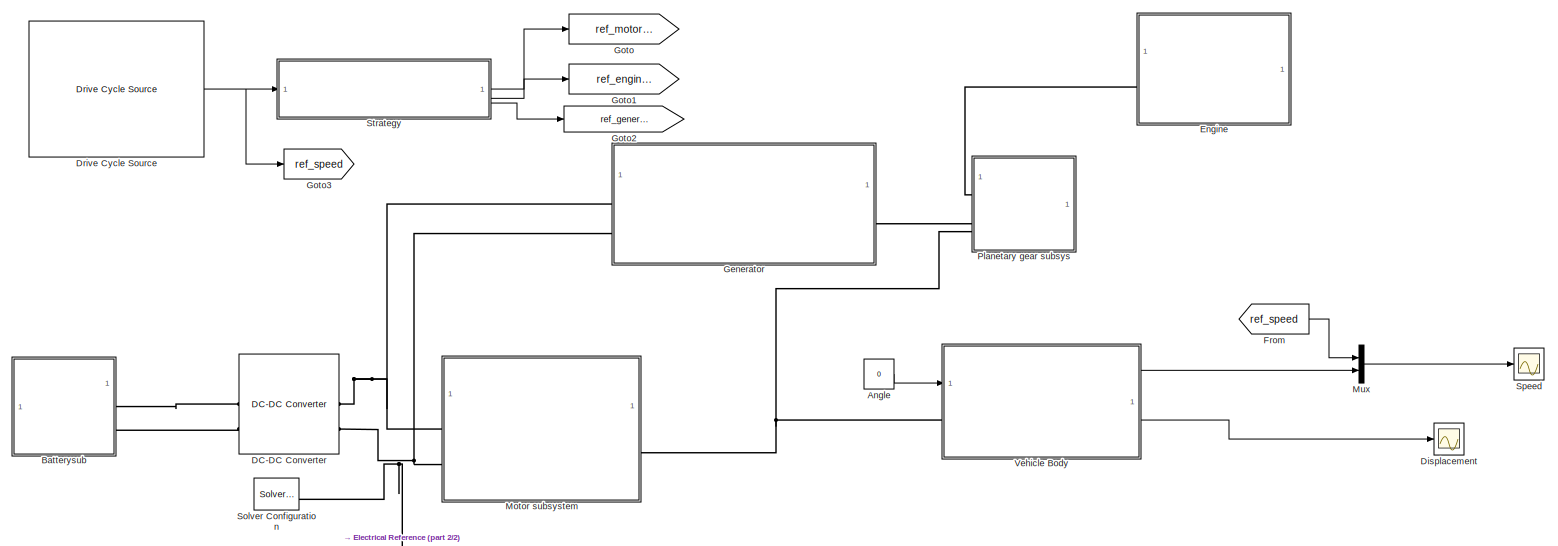
[diagram: root canvas - part 1/2, full width, middle band]
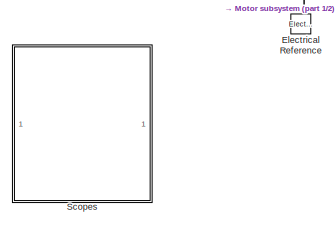
[diagram: root canvas - part 2/2, bottom left region]
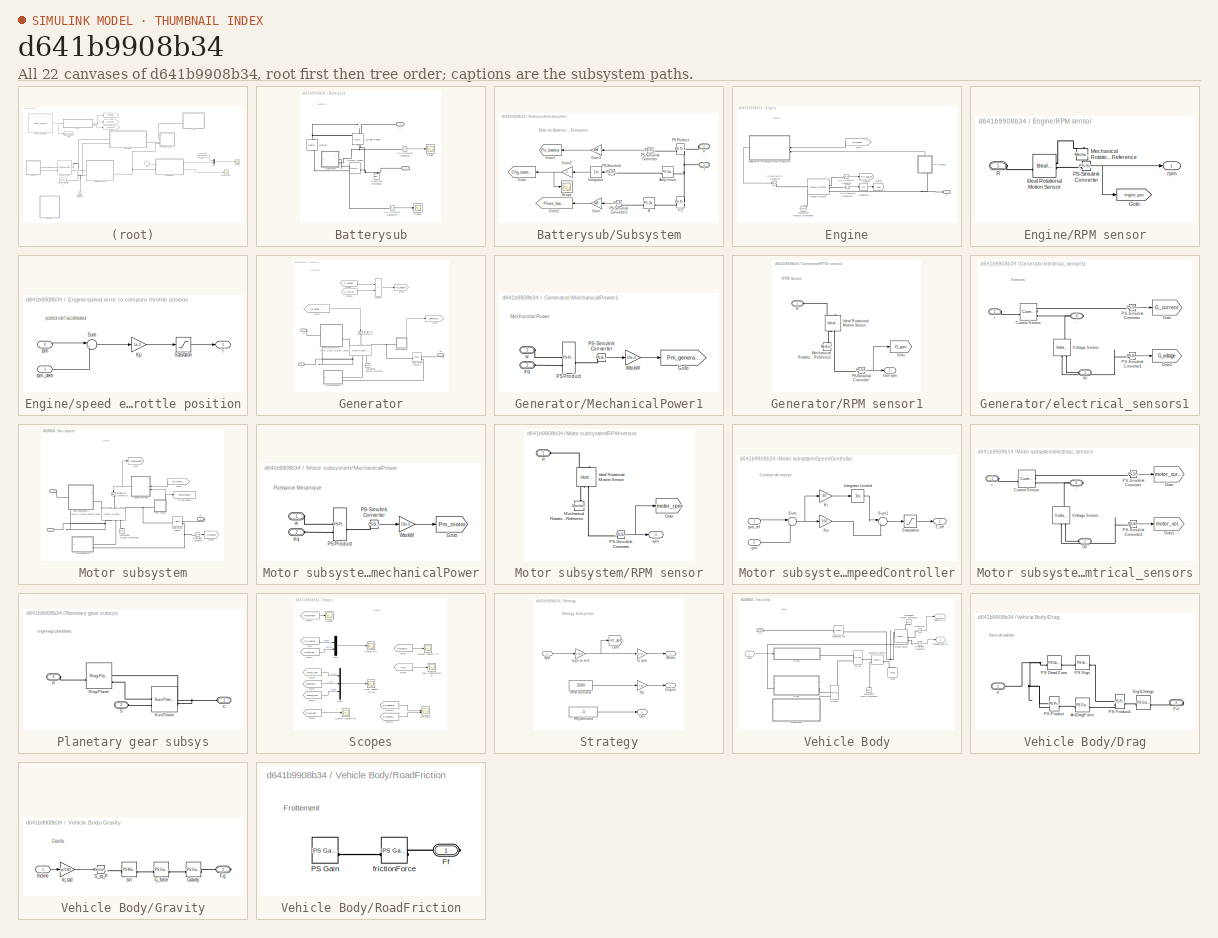
[diagram: thumbnail index - all 22 canvases of the model, root first then tree order]
MODEL slx_d641b9908b34
KIND model
CONFIG AbsTol = auto
CONFIG EnableMultiTasking = off
CONFIG FixedStep = auto
CONFIG MaxStep = auto
CONFIG MinStep = auto
CONFIG RelTol = 1e-3
CONFIG SampleTimeConstraint = Unconstrained
CONFIG SolverName = ode15s
CONFIG StartTime = 0.0
CONFIG StopTime = 2000
WORKSPACE source: mxarray member
WORKSPACE N_P0 = 3
BLOCK [Constant] Angle
  NameLocation = top
  Value = 0
BLOCK [SubSystem] Batterysub
BLOCK [PMIOPort] Batterysub/+
  Side = Left
BLOCK [PMIOPort] Batterysub/-
  Port = 2
  Side = Left
BLOCK [Reference] Batterysub/Battery  REF=batteryecm_lib/Battery
  LibrarySourceBlock = ee_lib/Sources/Battery
  NameLocation = right
  SourceBlock = batteryecm_lib/Battery
  SourceType = Battery
BLOCK [Reference] Batterysub/Current Sensor  REF=fl_lib/Electrical/Electrical Sensors/Current Sensor
  SourceBlock = fl_lib/Electrical/Electrical Sensors/Current Sensor
  SourceType = Current Sensor
BLOCK [Reference] Batterysub/Electrical Reference  REF=fl_lib/Electrical/Electrical Elements/Electrical Reference
  NameLocation = right
  SourceBlock = fl_lib/Electrical/Electrical Elements/Electrical Reference
  SourceType = Electrical Reference
BLOCK [Reference] Batterysub/PS-Simulink Converter  REF=nesl_utility/PS-Simulink
Converter
  SourceBlock = nesl_utility/PS-Simulink\nConverter
  SourceType = PS-Simulink\nConverter
BLOCK [Reference] Batterysub/PS-Simulink Converter1  REF=nesl_utility/PS-Simulink
Converter
  SourceBlock = nesl_utility/PS-Simulink\nConverter
  SourceType = PS-Simulink\nConverter
BLOCK [Scope] Batterysub/Scope
  Floating = off
  NumInputPorts = 1
  ScopeSpecificationString = Simulink.scopes.TimeScopeBlockCfg('CurrentConfiguration', extmgr.ConfigurationSet(extmgr.Configuration('Core','General UI',true),extmgr.Configuration('Core','Source UI',true),extmgr.Configuration('Sources','WiredSimulink',true,'DataLoggingVariableName','ScopeData3'),extmgr.Configuration('Visuals','Time Domain',true,'SerializedDisplays',{struct('MinYLimReal','194.36774','MaxYLimReal','196.28367','Y...<+1483ch>
BLOCK [Scope] Batterysub/Scope1
  Floating = off
  NumInputPorts = 1
  ScopeSpecificationString = Simulink.scopes.TimeScopeBlockCfg('CurrentConfiguration', extmgr.ConfigurationSet(extmgr.Configuration('Core','General UI',true),extmgr.Configuration('Core','Source UI',true),extmgr.Configuration('Sources','WiredSimulink',true,'DataLoggingVariableName','ScopeData4'),extmgr.Configuration('Visuals','Time Domain',true,'SerializedDisplays',{struct('MinYLimReal','-1.32587','MaxYLimReal','15.99545','YLa...<+1474ch>
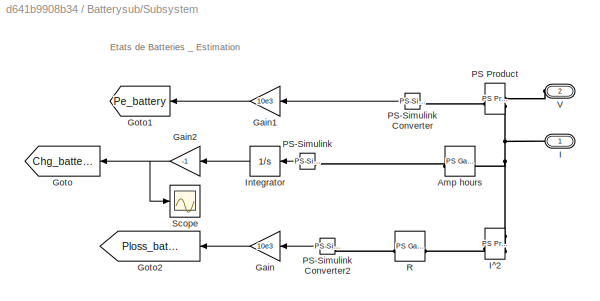
BLOCK [SubSystem] Batterysub/Subsystem
BLOCK [Reference] Batterysub/Subsystem/Amp hours  REF=fl_lib/Physical Signals/Functions/PS Gain
  SourceBlock = fl_lib/Physical Signals/Functions/PS Gain
  SourceType = PS Gain
BLOCK [Gain] Batterysub/Subsystem/Gain
  Gain = 10e3
BLOCK [Gain] Batterysub/Subsystem/Gain1
  Gain = 10e3
BLOCK [Gain] Batterysub/Subsystem/Gain2
  Gain = -1
BLOCK [Goto] Batterysub/Subsystem/Goto
  GotoTag = Chg_battery
  TagVisibility = global
BLOCK [Goto] Batterysub/Subsystem/Goto1
  GotoTag = Pe_battery
  TagVisibility = global
BLOCK [Goto] Batterysub/Subsystem/Goto2
  GotoTag = Ploss_battery
  TagVisibility = global
BLOCK [PMIOPort] Batterysub/Subsystem/I
  Side = Left
BLOCK [Reference] Batterysub/Subsystem/I^2  REF=fl_lib/Physical Signals/Functions/PS Product
  SourceBlock = fl_lib/Physical Signals/Functions/PS Product
  SourceType = PS Product
BLOCK [Integrator] Batterysub/Subsystem/Integrator
  InitialCondition = -150
  UpperSaturationLimit = 150
BLOCK [Reference] Batterysub/Subsystem/PS Product  REF=fl_lib/Physical Signals/Functions/PS Product
  SourceBlock = fl_lib/Physical Signals/Functions/PS Product
  SourceType = PS Product
BLOCK [Reference] Batterysub/Subsystem/PS-Simulink   REF=nesl_utility/PS-Simulink
Converter
  SourceBlock = nesl_utility/PS-Simulink\nConverter
  SourceType = PS-Simulink\nConverter
BLOCK [Reference] Batterysub/Subsystem/PS-Simulink Converter  REF=nesl_utility/PS-Simulink
Converter
  SourceBlock = nesl_utility/PS-Simulink\nConverter
  SourceType = PS-Simulink\nConverter
BLOCK [Reference] Batterysub/Subsystem/PS-Simulink Converter2  REF=nesl_utility/PS-Simulink
Converter
  SourceBlock = nesl_utility/PS-Simulink\nConverter
  SourceType = PS-Simulink\nConverter
BLOCK [Reference] Batterysub/Subsystem/R  REF=fl_lib/Physical Signals/Functions/PS Gain
  SourceBlock = fl_lib/Physical Signals/Functions/PS Gain
  SourceType = PS Gain
BLOCK [Scope] Batterysub/Subsystem/Scope
  Floating = off
  NumInputPorts = 1
  ScopeSpecificationString = Simulink.scopes.TimeScopeBlockCfg('CurrentConfiguration', extmgr.ConfigurationSet(extmgr.Configuration('Core','General UI',true),extmgr.Configuration('Core','Source UI',true),extmgr.Configuration('Sources','WiredSimulink',true,'DataLoggingVariableName','ScopeData5'),extmgr.Configuration('Visuals','Time Domain',true,'SerializedDisplays',{struct('MinYLimReal','138.45672','MaxYLimReal','151.28259','Y...<+1521ch>
BLOCK [PMIOPort] Batterysub/Subsystem/V
  Port = 2
  Side = Left
BLOCK [Reference] Batterysub/Voltage Sensor  REF=fl_lib/Electrical/Electrical Sensors/Voltage Sensor
  NameLocation = right
  SourceBlock = fl_lib/Electrical/Electrical Sensors/Voltage Sensor
  SourceType = Voltage Sensor
BLOCK [Reference] DC-DC Converter  REF=ee_lib/Semiconductors &
Converters/Converters/DC-DC Converter
  SourceBlock = ee_lib/Semiconductors &\nConverters/Converters/DC-DC Converter
  SourceType = DC-DC Converter
BLOCK [Scope] Displacement
  Floating = off
  NumInputPorts = 1
  ScopeSpecificationString = Simulink.scopes.TimeScopeBlockCfg('CurrentConfiguration', extmgr.ConfigurationSet(extmgr.Configuration('Core','General UI',true),extmgr.Configuration('Core','Source UI',true),extmgr.Configuration('Sources','WiredSimulink',true,'DataLoggingVariableName','ScopeData1'),extmgr.Configuration('Visuals','Time Domain',true,'SerializedDisplays',{struct('MinYLimReal','-9.29778','MaxYLimReal','83.67999','YLa...<+1493ch>
BLOCK [Reference] Drive Cycle Source  REF=autolibshared/Drive Cycle Source
  AttributesFormatString = %<cycleVar> (%<tfinal>)
  LibrarySourceBlock = autolibscenario/Drive Cycle Source
  SourceBlock = autolibshared/Drive Cycle Source
  SourceType = Drive Cycle Source
BLOCK [Reference] Electrical Reference  REF=fl_lib/Electrical/Electrical Elements/Electrical Reference
  NameLocation = right
  SourceBlock = fl_lib/Electrical/Electrical Elements/Electrical Reference
  SourceType = Electrical Reference
BLOCK [SubSystem] Engine
BLOCK [PMIOPort] Engine/F
  Side = Left
BLOCK [From] Engine/From
  GotoTag = ref_engine_speed
  TagVisibility = global
BLOCK [Reference] Engine/Generic Engine  REF=sdl_lib/Engines & Motors/Generic Engine
  SourceBlock = sdl_lib/Engines & Motors/Generic Engine
  SourceType = Generic Engine
BLOCK [Goto] Engine/Goto3
  GotoTag = Pm_engine
  TagVisibility = global
BLOCK [Goto] Engine/Goto4
  GotoTag = Fuel
  TagVisibility = global
BLOCK [Integrator] Engine/Integrator
BLOCK [Reference] Engine/Mechanical Rotational Reference  REF=fl_lib/Mechanical/Rotational Elements/Mechanical
Rotational Reference
  NameLocation = right
  SourceBlock = fl_lib/Mechanical/Rotational Elements/Mechanical\nRotational Reference
  SourceType = Mechanical\nRotational Reference
BLOCK [Reference] Engine/PS-Simulink Converter  REF=nesl_utility/PS-Simulink
Converter
  SourceBlock = nesl_utility/PS-Simulink\nConverter
  SourceType = PS-Simulink\nConverter
BLOCK [Reference] Engine/PS-Simulink Converter1  REF=nesl_utility/PS-Simulink
Converter
  SourceBlock = nesl_utility/PS-Simulink\nConverter
  SourceType = PS-Simulink\nConverter
BLOCK [SubSystem] Engine/RPM sensor
  NameLocation = right
BLOCK [Goto] Engine/RPM sensor/Goto
  GotoTag = engine_rpm
  TagVisibility = global
BLOCK [Reference] Engine/RPM sensor/Ideal Rotational Motion Sensor  REF=fl_lib/Mechanical/Mechanical Sensors/Ideal Rotational
Motion Sensor
  SourceBlock = fl_lib/Mechanical/Mechanical Sensors/Ideal Rotational\nMotion Sensor
  SourceType = Ideal Rotational\nMotion Sensor
BLOCK [Reference] Engine/RPM sensor/Mechanical Rotational Reference  REF=fl_lib/Mechanical/Rotational Elements/Mechanical
Rotational Reference
  NameLocation = right
  SourceBlock = fl_lib/Mechanical/Rotational Elements/Mechanical\nRotational Reference
  SourceType = Mechanical\nRotational Reference
BLOCK [Reference] Engine/RPM sensor/PS-Simulink Converter  REF=nesl_utility/PS-Simulink
Converter
  SourceBlock = nesl_utility/PS-Simulink\nConverter
  SourceType = PS-Simulink\nConverter
BLOCK [PMIOPort] Engine/RPM sensor/R
  Side = Left
BLOCK [Outport] Engine/RPM sensor/rpm
BLOCK [Reference] Engine/Simulink-PS Converter  REF=nesl_utility/Simulink-PS
Converter
  SourceBlock = nesl_utility/Simulink-PS\nConverter
  SourceType = Simulink-PS\nConverter
BLOCK [SubSystem] Engine/speed error to compute throttle position
BLOCK [Gain] Engine/speed error to compute throttle position/Kp
  Gain = 1e-3
BLOCK [Saturate] Engine/speed error to compute throttle position/Saturation
  LowerLimit = 0
  UpperLimit = 1
BLOCK [Sum] Engine/speed error to compute throttle position/Sum
  Inputs = |+-
BLOCK [Outport] Engine/speed error to compute throttle position/T
BLOCK [Inport] Engine/speed error to compute throttle position/rpm
  Port = 2
BLOCK [Inport] Engine/speed error to compute throttle position/rpm_dem
BLOCK [From] From
  GotoTag = ref_speed
  TagVisibility = global
BLOCK [SubSystem] Generator
BLOCK [PMIOPort] Generator/+1
  Side = Left
BLOCK [PMIOPort] Generator/-1
  Port = 2
  Side = Left
BLOCK [From] Generator/From
  GotoTag = G_voltage
  TagVisibility = global
BLOCK [From] Generator/From1
  GotoTag = ref_generator_torque
  TagVisibility = global
BLOCK [From] Generator/From6
  GotoTag = G_current
  TagVisibility = global
BLOCK [Goto] Generator/Goto
  GotoTag = Pe_generator
  TagVisibility = global
BLOCK [Goto] Generator/Goto2
  GotoTag = generator_rpm
  TagVisibility = global
BLOCK [Reference] Generator/Ideal Torque Sensor1  REF=fl_lib/Mechanical/Mechanical Sensors/Ideal Torque Sensor
  SourceBlock = fl_lib/Mechanical/Mechanical Sensors/Ideal Torque Sensor
  SourceType = Ideal Torque Sensor
BLOCK [Reference] Generator/Mechanical Rotational Reference1  REF=fl_lib/Mechanical/Rotational Elements/Mechanical
Rotational Reference
  NameLocation = right
  SourceBlock = fl_lib/Mechanical/Rotational Elements/Mechanical\nRotational Reference
  SourceType = Mechanical\nRotational Reference
BLOCK [SubSystem] Generator/MechanicalPower1
BLOCK [Goto] Generator/MechanicalPower1/Goto
  GotoTag = Pm_generator
  TagVisibility = global
BLOCK [Reference] Generator/MechanicalPower1/PS Product  REF=fl_lib/Physical Signals/Functions/PS Product
  SourceBlock = fl_lib/Physical Signals/Functions/PS Product
  SourceType = PS Product
BLOCK [Reference] Generator/MechanicalPower1/PS-Simulink Converter  REF=nesl_utility/PS-Simulink
Converter
  SourceBlock = nesl_utility/PS-Simulink\nConverter
  SourceType = PS-Simulink\nConverter
BLOCK [Gain] Generator/MechanicalPower1/WtokW
  Gain = 10e-3
BLOCK [PMIOPort] Generator/MechanicalPower1/trq
  Port = 2
  Side = Left
BLOCK [PMIOPort] Generator/MechanicalPower1/w
  NameLocation = top
  Side = Left
BLOCK [Reference] Generator/Motor & Drive (System Level)1  REF=ee_lib/Electromechanical/Motor & Drive
(System Level)
  NameLocation = right
  SourceBlock = ee_lib/Electromechanical/Motor & Drive\n(System Level)
  SourceType = Motor & Drive\n(System Level)
BLOCK [Product] Generator/Product
BLOCK [PMIOPort] Generator/R1
  Port = 3
  Side = Right
BLOCK [SubSystem] Generator/RPM sensor1
  PortSchema = {"entries":[{"content":{"sides":[{"content":{"connectorIds":["LConn1"]},"type":"ConnectorPlacement.EquallySpacedRectSide","uuid":"39d046d5-f421-4f0d-879d-c19748025329"},{"content":{"side":"RIGHT"},"type":"ConnectorPlacement.EquallySpacedRectSide","uuid":"b6149d9e-7ab3-4f68-a15b-9fef8f2169c7"},{"content":{"connectorIds":["Out1"],"side":"TOP"},"type":"ConnectorPlacement.EquallySpacedRectSide","uuid"...<+225ch>
BLOCK [Outport] Generator/RPM sensor1/Gen rpm
BLOCK [Goto] Generator/RPM sensor1/Goto
  GotoTag = G_rpm
  TagVisibility = global
BLOCK [Reference] Generator/RPM sensor1/Ideal Rotational Motion Sensor  REF=fl_lib/Mechanical/Mechanical Sensors/Ideal Rotational
Motion Sensor
  NameLocation = left
  SourceBlock = fl_lib/Mechanical/Mechanical Sensors/Ideal Rotational\nMotion Sensor
  SourceType = Ideal Rotational\nMotion Sensor
BLOCK [Reference] Generator/RPM sensor1/Mechanical Rotational Reference  REF=fl_lib/Mechanical/Rotational Elements/Mechanical
Rotational Reference
  NameLocation = right
  SourceBlock = fl_lib/Mechanical/Rotational Elements/Mechanical\nRotational Reference
  SourceType = Mechanical\nRotational Reference
BLOCK [Reference] Generator/RPM sensor1/PS-Simulink Converter  REF=nesl_utility/PS-Simulink
Converter
  SourceBlock = nesl_utility/PS-Simulink\nConverter
  SourceType = PS-Simulink\nConverter
BLOCK [PMIOPort] Generator/RPM sensor1/R
  Side = Left
BLOCK [Reference] Generator/Simulink-PS Converter2  REF=nesl_utility/Simulink-PS
Converter
  NameLocation = left
  SourceBlock = nesl_utility/Simulink-PS\nConverter
  SourceType = Simulink-PS\nConverter
BLOCK [SubSystem] Generator/electrical_sensors1
BLOCK [PMIOPort] Generator/electrical_sensors1/+
  Side = Left
BLOCK [PMIOPort] Generator/electrical_sensors1/-
  Port = 3
  Side = Right
BLOCK [PMIOPort] Generator/electrical_sensors1/0V
  Port = 2
  Side = Left
BLOCK [Reference] Generator/electrical_sensors1/Current Sensor  REF=fl_lib/Electrical/Electrical Sensors/Current Sensor
  SourceBlock = fl_lib/Electrical/Electrical Sensors/Current Sensor
  SourceType = Current Sensor
BLOCK [Goto] Generator/electrical_sensors1/Goto
  GotoTag = G_current
  TagVisibility = global
BLOCK [Goto] Generator/electrical_sensors1/Goto1
  GotoTag = G_voltage
  TagVisibility = global
BLOCK [Reference] Generator/electrical_sensors1/PS-Simulink Converter  REF=nesl_utility/PS-Simulink
Converter
  SourceBlock = nesl_utility/PS-Simulink\nConverter
  SourceType = PS-Simulink\nConverter
BLOCK [Reference] Generator/electrical_sensors1/PS-Simulink Converter1  REF=nesl_utility/PS-Simulink
Converter
  SourceBlock = nesl_utility/PS-Simulink\nConverter
  SourceType = PS-Simulink\nConverter
BLOCK [Reference] Generator/electrical_sensors1/Voltage Sensor  REF=fl_lib/Electrical/Electrical Sensors/Voltage Sensor
  NameLocation = right
  SourceBlock = fl_lib/Electrical/Electrical Sensors/Voltage Sensor
  SourceType = Voltage Sensor
BLOCK [Goto] Goto
  GotoTag = ref_motor_rpm
  TagVisibility = global
BLOCK [Goto] Goto1
  GotoTag = ref_engine_speed
  TagVisibility = global
BLOCK [Goto] Goto2
  GotoTag = ref_generator_torque
  TagVisibility = global
BLOCK [Goto] Goto3
  GotoTag = ref_speed
  TagVisibility = global
BLOCK [SubSystem] Motor subsystem
BLOCK [PMIOPort] Motor subsystem/+
  Side = Left
BLOCK [PMIOPort] Motor subsystem/-
  Port = 2
  Side = Left
BLOCK [From] Motor subsystem/From
  GotoTag = ref_motor_rpm
  TagVisibility = global
BLOCK [Goto] Motor subsystem/Goto
  GotoTag = trqDemand
  TagVisibility = global
BLOCK [Goto] Motor subsystem/Goto1
  GotoTag = trqMotor
  TagVisibility = global
BLOCK [Reference] Motor subsystem/Ideal Torque Sensor  REF=fl_lib/Mechanical/Mechanical Sensors/Ideal Torque Sensor
  SourceBlock = fl_lib/Mechanical/Mechanical Sensors/Ideal Torque Sensor
  SourceType = Ideal Torque Sensor
BLOCK [Reference] Motor subsystem/Mechanical Rotational Reference  REF=fl_lib/Mechanical/Rotational Elements/Mechanical
Rotational Reference
  NameLocation = right
  SourceBlock = fl_lib/Mechanical/Rotational Elements/Mechanical\nRotational Reference
  SourceType = Mechanical\nRotational Reference
BLOCK [SubSystem] Motor subsystem/MechanicalPower
BLOCK [Goto] Motor subsystem/MechanicalPower/Goto
  GotoTag = Pm_motor
  TagVisibility = global
BLOCK [Reference] Motor subsystem/MechanicalPower/PS Product  REF=fl_lib/Physical Signals/Functions/PS Product
  SourceBlock = fl_lib/Physical Signals/Functions/PS Product
  SourceType = PS Product
BLOCK [Reference] Motor subsystem/MechanicalPower/PS-Simulink Converter  REF=nesl_utility/PS-Simulink
Converter
  SourceBlock = nesl_utility/PS-Simulink\nConverter
  SourceType = PS-Simulink\nConverter
BLOCK [Gain] Motor subsystem/MechanicalPower/WtokW
  Gain = 10e-3
BLOCK [PMIOPort] Motor subsystem/MechanicalPower/trq
  Port = 2
  Side = Left
BLOCK [PMIOPort] Motor subsystem/MechanicalPower/w
  NameLocation = top
  Side = Left
BLOCK [Reference] Motor subsystem/Motor & Drive (System Level)  REF=ee_lib/Electromechanical/Motor & Drive
(System Level)
  NameLocation = right
  SourceBlock = ee_lib/Electromechanical/Motor & Drive\n(System Level)
  SourceType = Motor & Drive\n(System Level)
BLOCK [Reference] Motor subsystem/PS-Simulink Converter  REF=nesl_utility/PS-Simulink
Converter
  SourceBlock = nesl_utility/PS-Simulink\nConverter
  SourceType = PS-Simulink\nConverter
BLOCK [PMIOPort] Motor subsystem/R
  Port = 3
  Side = Right
BLOCK [SubSystem] Motor subsystem/RPM sensor
  PortSchema = {"entries":[{"content":{"sides":[{"content":{"connectorIds":["LConn1"]},"type":"ConnectorPlacement.EquallySpacedRectSide","uuid":"39d046d5-f421-4f0d-879d-c19748025329"},{"content":{"side":"RIGHT"},"type":"ConnectorPlacement.EquallySpacedRectSide","uuid":"b6149d9e-7ab3-4f68-a15b-9fef8f2169c7"},{"content":{"connectorIds":["Out1"],"side":"TOP"},"type":"ConnectorPlacement.EquallySpacedRectSide","uuid"...<+225ch>
BLOCK [Goto] Motor subsystem/RPM sensor/Goto
  GotoTag = motor_rpm
  TagVisibility = global
BLOCK [Reference] Motor subsystem/RPM sensor/Ideal Rotational Motion Sensor  REF=fl_lib/Mechanical/Mechanical Sensors/Ideal Rotational
Motion Sensor
  NameLocation = left
  SourceBlock = fl_lib/Mechanical/Mechanical Sensors/Ideal Rotational\nMotion Sensor
  SourceType = Ideal Rotational\nMotion Sensor
BLOCK [Reference] Motor subsystem/RPM sensor/Mechanical Rotational Reference  REF=fl_lib/Mechanical/Rotational Elements/Mechanical
Rotational Reference
  NameLocation = right
  SourceBlock = fl_lib/Mechanical/Rotational Elements/Mechanical\nRotational Reference
  SourceType = Mechanical\nRotational Reference
BLOCK [Reference] Motor subsystem/RPM sensor/PS-Simulink Converter  REF=nesl_utility/PS-Simulink
Converter
  SourceBlock = nesl_utility/PS-Simulink\nConverter
  SourceType = PS-Simulink\nConverter
BLOCK [PMIOPort] Motor subsystem/RPM sensor/R
  Side = Left
BLOCK [Outport] Motor subsystem/RPM sensor/rpm
BLOCK [Reference] Motor subsystem/Simulink-PS Converter1  REF=nesl_utility/Simulink-PS
Converter
  NameLocation = left
  SourceBlock = nesl_utility/Simulink-PS\nConverter
  SourceType = Simulink-PS\nConverter
BLOCK [SubSystem] Motor subsystem/SpeedController
BLOCK [Integrator] Motor subsystem/SpeedController/Integrator Limited
  LimitOutput = on
  LowerSaturationLimit = -40
  UpperSaturationLimit = 40
BLOCK [Gain] Motor subsystem/SpeedController/Ki
  Gain = 60
BLOCK [Gain] Motor subsystem/SpeedController/Kp
  Gain = 200
BLOCK [Saturate] Motor subsystem/SpeedController/Saturation
  LowerLimit = -40
  UpperLimit = 40
BLOCK [Sum] Motor subsystem/SpeedController/Sum
  Inputs = |+-
  NameLocation = top
BLOCK [Sum] Motor subsystem/SpeedController/Sum1
  Inputs = |++
BLOCK [Outport] Motor subsystem/SpeedController/T_ref
BLOCK [Inport] Motor subsystem/SpeedController/rpm
  Port = 2
BLOCK [Inport] Motor subsystem/SpeedController/rpm_ref
BLOCK [ToWorkspace] Motor subsystem/To Workspace
  FixptAsFi = on
  MaxDataPoints = inf
  SampleTime = -1
  Save2DSignal = 2-D array (concatenate along first dimension)
  VariableName = rpm0
BLOCK [SubSystem] Motor subsystem/electrical_sensors
BLOCK [PMIOPort] Motor subsystem/electrical_sensors/+
  Side = Left
BLOCK [PMIOPort] Motor subsystem/electrical_sensors/-
  Port = 3
  Side = Right
BLOCK [PMIOPort] Motor subsystem/electrical_sensors/0V
  Port = 2
  Side = Left
BLOCK [Reference] Motor subsystem/electrical_sensors/Current Sensor  REF=fl_lib/Electrical/Electrical Sensors/Current Sensor
  SourceBlock = fl_lib/Electrical/Electrical Sensors/Current Sensor
  SourceType = Current Sensor
BLOCK [Goto] Motor subsystem/electrical_sensors/Goto
  GotoTag = motor_current
  TagVisibility = global
BLOCK [Goto] Motor subsystem/electrical_sensors/Goto1
  GotoTag = motor_voltage
  TagVisibility = global
BLOCK [Reference] Motor subsystem/electrical_sensors/PS-Simulink Converter  REF=nesl_utility/PS-Simulink
Converter
  SourceBlock = nesl_utility/PS-Simulink\nConverter
  SourceType = PS-Simulink\nConverter
BLOCK [Reference] Motor subsystem/electrical_sensors/PS-Simulink Converter1  REF=nesl_utility/PS-Simulink
Converter
  SourceBlock = nesl_utility/PS-Simulink\nConverter
  SourceType = PS-Simulink\nConverter
BLOCK [Reference] Motor subsystem/electrical_sensors/Voltage Sensor  REF=fl_lib/Electrical/Electrical Sensors/Voltage Sensor
  NameLocation = right
  SourceBlock = fl_lib/Electrical/Electrical Sensors/Voltage Sensor
  SourceType = Voltage Sensor
BLOCK [Mux] Mux
  DisplayOption = bar
  Inputs = 2
BLOCK [SubSystem] Planetary gear subsys
BLOCK [PMIOPort] Planetary gear subsys/C
  Side = Left
BLOCK [PMIOPort] Planetary gear subsys/R
  Port = 3
  Side = Left
BLOCK [Reference] Planetary gear subsys/Ring-Planet  REF=sdl_lib/Gears/Planetary
Subcomponents/Ring-Planet
  SourceBlock = sdl_lib/Gears/Planetary\nSubcomponents/Ring-Planet
  SourceType = Ring-Planet
BLOCK [PMIOPort] Planetary gear subsys/S
  Port = 2
  Side = Left
BLOCK [Reference] Planetary gear subsys/Sun-Planet  REF=sdl_lib/Gears/Planetary
Subcomponents/Sun-Planet
  SourceBlock = sdl_lib/Gears/Planetary\nSubcomponents/Sun-Planet
  SourceType = Sun-Planet
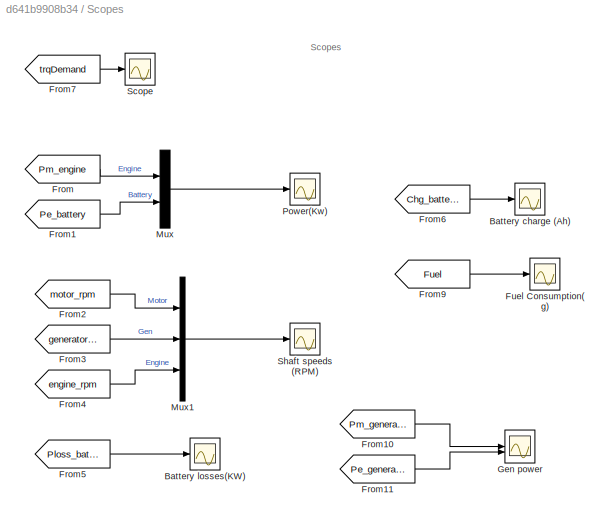
BLOCK [SubSystem] Scopes
BLOCK [Scope] Scopes/Battery charge (Ah)
  Floating = off
  NumInputPorts = 1
  ScopeSpecificationString = Simulink.scopes.TimeScopeBlockCfg('CurrentConfiguration', extmgr.ConfigurationSet(extmgr.Configuration('Core','General UI',true),extmgr.Configuration('Core','Source UI',true),extmgr.Configuration('Sources','WiredSimulink',true,'DataLoggingVariableName','ScopeData6'),extmgr.Configuration('Visuals','Time Domain',true,'SerializedDisplays',{struct('MinYLimReal','138.45672','MaxYLimReal','151.28259','Y...<+1492ch>
BLOCK [Scope] Scopes/Battery losses(KW)
  Floating = off
  NumInputPorts = 1
  ScopeSpecificationString = Simulink.scopes.TimeScopeBlockCfg('CurrentConfiguration', extmgr.ConfigurationSet(extmgr.Configuration('Core','General UI',true),extmgr.Configuration('Core','Source UI',true),extmgr.Configuration('Sources','WiredSimulink',true,'DataLoggingVariableName','ScopeData3'),extmgr.Configuration('Visuals','Time Domain',true,'SerializedDisplays',{struct('MinYLimReal','-28704984.73738','MaxYLimReal','2583448...<+1510ch>
BLOCK [From] Scopes/From
  GotoTag = Pm_engine
  TagVisibility = global
BLOCK [From] Scopes/From1
  GotoTag = Pe_battery
  TagVisibility = global
BLOCK [From] Scopes/From10
  GotoTag = Pm_generator
  TagVisibility = global
BLOCK [From] Scopes/From11
  GotoTag = Pe_generator
  TagVisibility = global
BLOCK [From] Scopes/From2
  GotoTag = motor_rpm
  TagVisibility = global
BLOCK [From] Scopes/From3
  GotoTag = generator_rpm
  TagVisibility = global
BLOCK [From] Scopes/From4
  GotoTag = engine_rpm
  TagVisibility = global
BLOCK [From] Scopes/From5
  GotoTag = Ploss_battery
  TagVisibility = global
BLOCK [From] Scopes/From6
  GotoTag = Chg_battery
  TagVisibility = global
BLOCK [From] Scopes/From7
  GotoTag = trqDemand
  TagVisibility = global
BLOCK [From] Scopes/From9
  GotoTag = Fuel
  TagVisibility = global
BLOCK [Scope] Scopes/Fuel Consumption(g)
  Floating = off
  NumInputPorts = 1
  ScopeSpecificationString = Simulink.scopes.TimeScopeBlockCfg('CurrentConfiguration', extmgr.ConfigurationSet(extmgr.Configuration('Core','General UI',true),extmgr.Configuration('Core','Source UI',true),extmgr.Configuration('Sources','WiredSimulink',true,'DataLoggingVariableName','ScopeData9'),extmgr.Configuration('Visuals','Time Domain',true,'SerializedDisplays',{struct('MinYLimReal','-0.000000002','MaxYLimReal','0.00000001...<+1544ch>
BLOCK [Scope] Scopes/Gen power
  Floating = off
  NumInputPorts = 2
  ScopeSpecificationString = Simulink.scopes.TimeScopeBlockCfg('CurrentConfiguration', extmgr.ConfigurationSet(extmgr.Configuration('Core','General UI',true),extmgr.Configuration('Core','Source UI',true),extmgr.Configuration('Sources','WiredSimulink',true,'DataLoggingVariableName','ScopeData10'),extmgr.Configuration('Visuals','Time Domain',true,'SerializedDisplays',{struct('MinYLimReal','-312.61371','MaxYLimReal','2812.8184',...<+1478ch>
BLOCK [Mux] Scopes/Mux
  DisplayOption = bar
  Inputs = 2
BLOCK [Mux] Scopes/Mux1
  DisplayOption = bar
  Inputs = 3
BLOCK [Scope] Scopes/Power(Kw)
  Floating = off
  NumInputPorts = 1
  ScopeSpecificationString = Simulink.scopes.TimeScopeBlockCfg('CurrentConfiguration', extmgr.ConfigurationSet(extmgr.Configuration('Core','General UI',true),extmgr.Configuration('Core','Source UI',true),extmgr.Configuration('Sources','WiredSimulink',true,'DataLoggingVariableName','ScopeData1'),extmgr.Configuration('Visuals','Time Domain',true,'SerializedDisplays',{struct('MinYLimReal','-32284928.55779','MaxYLimReal','3634976...<+1683ch>
BLOCK [Scope] Scopes/Scope
  Floating = off
  NumInputPorts = 1
  ScopeSpecificationString = Simulink.scopes.TimeScopeBlockCfg('CurrentConfiguration', extmgr.ConfigurationSet(extmgr.Configuration('Core','General UI',true),extmgr.Configuration('Core','Source UI',true),extmgr.Configuration('Sources','WiredSimulink',true,'DataLoggingVariableName','ScopeData7'),extmgr.Configuration('Visuals','Time Domain',true,'SerializedDisplays',{struct('MinYLimReal','-50.00000','MaxYLimReal','50.00000','YL...<+1498ch>
BLOCK [Scope] Scopes/Shaft speeds (RPM)
  Floating = off
  NumInputPorts = 1
  ScopeSpecificationString = Simulink.scopes.TimeScopeBlockCfg('CurrentConfiguration', extmgr.ConfigurationSet(extmgr.Configuration('Core','General UI',true),extmgr.Configuration('Core','Source UI',true),extmgr.Configuration('Sources','WiredSimulink',true,'DataLoggingVariableName','ScopeData2'),extmgr.Configuration('Visuals','Time Domain',true,'SerializedDisplays',{struct('MinYLimReal','-989.68104','MaxYLimReal','186.63341','...<+1601ch>
BLOCK [Reference] Solver Configuration  REF=nesl_utility/Solver
Configuration
  SourceBlock = nesl_utility/Solver\nConfiguration
  SourceType = Solver\nConfiguration
BLOCK [Scope] Speed
  Floating = off
  NumInputPorts = 1
  ScopeSpecificationString = Simulink.scopes.TimeScopeBlockCfg('CurrentConfiguration', extmgr.ConfigurationSet(extmgr.Configuration('Core','General UI',true),extmgr.Configuration('Core','Source UI',true),extmgr.Configuration('Sources','WiredSimulink',true,'DataLoggingVariableName','ScopeData2'),extmgr.Configuration('Visuals','Time Domain',true,'SerializedDisplays',{struct('MinYLimReal','-3.22187','MaxYLimReal','28.52151','YLa...<+1538ch>
BLOCK [SubSystem] Strategy
BLOCK [Outport] Strategy/Engine
  Port = 2
BLOCK [Outport] Strategy/Gen
  Port = 3
BLOCK [Goto] Strategy/Goto
  GotoTag = ref_spd
  TagVisibility = global
BLOCK [Gain] Strategy/Kp
  Gain = 1.08
BLOCK [Outport] Strategy/Motor
BLOCK [Constant] Strategy/RPM demand
  Value = 2000
BLOCK [Inport] Strategy/Spd
BLOCK [Constant] Strategy/TRQ demand
  Value = -3
BLOCK [Gain] Strategy/mph to m//s
  Gain = 0.44074
BLOCK [Gain] Strategy/to rpm
  Gain = 60/2*pi*0.3
BLOCK [SubSystem] Vehicle Body
BLOCK [Reference] Vehicle Body/Converter1  REF=nesl_utility/PS-Simulink
Converter
  SourceBlock = nesl_utility/PS-Simulink\nConverter
  SourceType = PS-Simulink\nConverter
BLOCK [Outport] Vehicle Body/Displacement(m)
  Port = 2
BLOCK [SubSystem] Vehicle Body/Drag
BLOCK [Reference] Vehicle Body/Drag/AirDragForce  REF=fl_lib/Physical Signals/Functions/PS Gain
  SourceBlock = fl_lib/Physical Signals/Functions/PS Gain
  SourceType = PS Gain
BLOCK [PMIOPort] Vehicle Body/Drag/Fd
  Port = 2
  Side = Right
BLOCK [Reference] Vehicle Body/Drag/PS Dead Zone  REF=fl_lib/Physical Signals/Nonlinear Operators/PS Dead Zone
  SourceBlock = fl_lib/Physical Signals/Nonlinear Operators/PS Dead Zone
  SourceType = PS Dead Zone
BLOCK [Reference] Vehicle Body/Drag/PS Product  REF=fl_lib/Physical Signals/Functions/PS Product
  SourceBlock = fl_lib/Physical Signals/Functions/PS Product
  SourceType = PS Product
BLOCK [Reference] Vehicle Body/Drag/PS Product1  REF=fl_lib/Physical Signals/Functions/PS Product
  SourceBlock = fl_lib/Physical Signals/Functions/PS Product
  SourceType = PS Product
BLOCK [Reference] Vehicle Body/Drag/PS Sign  REF=fl_lib/Physical Signals/Nonlinear Operators/PS Sign
  SourceBlock = fl_lib/Physical Signals/Nonlinear Operators/PS Sign
  SourceType = PS Sign
BLOCK [Reference] Vehicle Body/Drag/SignChange  REF=fl_lib/Physical Signals/Functions/PS Gain
  SourceBlock = fl_lib/Physical Signals/Functions/PS Gain
  SourceType = PS Gain
BLOCK [PMIOPort] Vehicle Body/Drag/V
  Side = Left
BLOCK [SubSystem] Vehicle Body/Gravity
BLOCK [PMIOPort] Vehicle Body/Gravity/Fg
  Side = Right
BLOCK [Reference] Vehicle Body/Gravity/G_force  REF=fl_lib/Physical Signals/Functions/PS Gain
  SourceBlock = fl_lib/Physical Signals/Functions/PS Gain
  SourceType = PS Gain
BLOCK [Reference] Vehicle Body/Gravity/Gravity  REF=fl_lib/Physical Signals/Functions/PS Gain
  SourceBlock = fl_lib/Physical Signals/Functions/PS Gain
  SourceType = PS Gain
BLOCK [Inport] Vehicle Body/Gravity/Incline
BLOCK [Reference] Vehicle Body/Gravity/S_to_P  REF=nesl_utility/Simulink-PS
Converter
  SourceBlock = nesl_utility/Simulink-PS\nConverter
  SourceType = Simulink-PS\nConverter
BLOCK [Reference] Vehicle Body/Gravity/sin  REF=fl_lib/Physical Signals/Functions/PS Math Function
  SourceBlock = fl_lib/Physical Signals/Functions/PS Math Function
  SourceType = PS Math Function
BLOCK [Gain] Vehicle Body/Gravity/to_rad
  Gain = pi/180
BLOCK [Reference] Vehicle Body/Ideal Force Source  REF=fl_lib/Mechanical/Mechanical Sources/Ideal Force Source
  SourceBlock = fl_lib/Mechanical/Mechanical Sources/Ideal Force Source
  SourceType = Ideal Force Source
BLOCK [Inport] Vehicle Body/Incline
BLOCK [Reference] Vehicle Body/Mass  REF=fl_lib/Mechanical/Translational
Elements/Mass
  NameLocation = right
  SourceBlock = fl_lib/Mechanical/Translational\nElements/Mass
  SourceType = Mass
BLOCK [Reference] Vehicle Body/Mechanical Translational Reference  REF=fl_lib/Mechanical/Translational
Elements/Mechanical
Translational
Reference
  NameLocation = right
  SourceBlock = fl_lib/Mechanical/Translational\nElements/Mechanical\nTranslational\nReference
  SourceType = Mechanical\nTranslational\nReference
BLOCK [Reference] Vehicle Body/Mechanical Translational Reference1  REF=fl_lib/Mechanical/Translational
Elements/Mechanical
Translational
Reference
  NameLocation = left
  SourceBlock = fl_lib/Mechanical/Translational\nElements/Mechanical\nTranslational\nReference
  SourceType = Mechanical\nTranslational\nReference
BLOCK [Reference] Vehicle Body/Motion Sensor  REF=fl_lib/Mechanical/Mechanical Sensors/Ideal Translational
Motion Sensor
  SourceBlock = fl_lib/Mechanical/Mechanical Sensors/Ideal Translational\nMotion Sensor
  SourceType = Ideal Translational\nMotion Sensor
BLOCK [Reference] Vehicle Body/PS Add  REF=fl_lib/Physical Signals/Functions/PS Add
  SourceBlock = fl_lib/Physical Signals/Functions/PS Add
  SourceType = PS Add
BLOCK [Reference] Vehicle Body/PS Add1  REF=fl_lib/Physical Signals/Functions/PS Add
  SourceBlock = fl_lib/Physical Signals/Functions/PS Add
  SourceType = PS Add
BLOCK [Reference] Vehicle Body/PS-Simulink Converter  REF=nesl_utility/PS-Simulink
Converter
  SourceBlock = nesl_utility/PS-Simulink\nConverter
  SourceType = PS-Simulink\nConverter
BLOCK [PMIOPort] Vehicle Body/R
  Side = Left
BLOCK [SubSystem] Vehicle Body/RoadFriction
BLOCK [PMIOPort] Vehicle Body/RoadFriction/Ff
  Side = Right
BLOCK [Reference] Vehicle Body/RoadFriction/PS Gain  REF=fl_lib/Physical Signals/Functions/PS Gain
  SourceBlock = fl_lib/Physical Signals/Functions/PS Gain
  SourceType = PS Gain
BLOCK [Reference] Vehicle Body/RoadFriction/frictionForce  REF=fl_lib/Physical Signals/Functions/PS Gain
  SourceBlock = fl_lib/Physical Signals/Functions/PS Gain
  SourceType = PS Gain
BLOCK [Outport] Vehicle Body/Velocity(m//s)
BLOCK [Reference] Vehicle Body/Wheel and Axle  REF=fl_lib/Mechanical/Mechanisms/Wheel and Axle
  SourceBlock = fl_lib/Mechanical/Mechanisms/Wheel and Axle
  SourceType = Wheel and Axle
ANNOTATION Batterysub: Batterie
ANNOTATION Batterysub/Subsystem: Etats de Batteries _ Estimation
ANNOTATION Engine: Engine
ANNOTATION Engine/speed error to compute throttle position: position de l'accélérateur
ANNOTATION Generator: Generator
ANNOTATION Generator/MechanicalPower1: Mechanical Power
ANNOTATION Generator/RPM sensor1: RPM Sensor
ANNOTATION Generator/electrical_sensors1: Sensors
ANNOTATION Motor subsystem: Motor
ANNOTATION Motor subsystem/MechanicalPower: Puissance Mecanique
ANNOTATION Motor subsystem/SpeedController: Controle de vitesse
ANNOTATION Planetary gear subsys: e ngrenage planétaire
ANNOTATION Scopes: Scopes
ANNOTATION Strategy: Strategy Subsystem
ANNOTATION Vehicle Body: Vehicule
ANNOTATION Vehicle Body/Drag: force de traînée
ANNOTATION Vehicle Body/Gravity: Gravite
ANNOTATION Vehicle Body/RoadFriction: Frottement
LINE Angle:1 -> Vehicle Body:1
LINE Batterysub/PS-Simulink Converter1:1 -> Batterysub/Scope1:1
LINE Batterysub/PS-Simulink Converter:1 -> Batterysub/Scope:1
LINE Batterysub/Subsystem/Gain1:1 -> Batterysub/Subsystem/Goto1:1
NET Batterysub/Subsystem/Gain2:1 -> Batterysub/Subsystem/Goto:1, Batterysub/Subsystem/Scope:1
LINE Batterysub/Subsystem/Gain:1 -> Batterysub/Subsystem/Goto2:1
LINE Batterysub/Subsystem/Integrator:1 -> Batterysub/Subsystem/Gain2:1
LINE Batterysub/Subsystem/PS-Simulink :1 -> Batterysub/Subsystem/Integrator:1
LINE Batterysub/Subsystem/PS-Simulink Converter2:1 -> Batterysub/Subsystem/Gain:1
LINE Batterysub/Subsystem/PS-Simulink Converter:1 -> Batterysub/Subsystem/Gain1:1
NET Drive Cycle Source:1 -> Goto3:1, Strategy:1
LINE Engine/From:1 -> Engine/speed error to compute throttle position:1
LINE Engine/Integrator:1 -> Engine/Goto4:1
LINE Engine/PS-Simulink Converter1:1 -> Engine/Integrator:1
LINE Engine/PS-Simulink Converter:1 -> Engine/Goto3:1
NET Engine/RPM sensor/PS-Simulink Converter:1 -> Engine/RPM sensor/Goto:1, Engine/RPM sensor/rpm:1
LINE Engine/RPM sensor:1 -> Engine/speed error to compute throttle position:2
LINE Engine/speed error to compute throttle position/Kp:1 -> Engine/speed error to compute throttle position/Saturation:1
LINE Engine/speed error to compute throttle position/Saturation:1 -> Engine/speed error to compute throttle position/T:1
LINE Engine/speed error to compute throttle position/Sum:1 -> Engine/speed error to compute throttle position/Kp:1
LINE Engine/speed error to compute throttle position/rpm:1 -> Engine/speed error to compute throttle position/Sum:1
LINE Engine/speed error to compute throttle position/rpm_dem:1 -> Engine/speed error to compute throttle position/Sum:2
LINE Engine/speed error to compute throttle position:1 -> Engine/Simulink-PS Converter:1
LINE From:1 -> Mux:1
LINE Generator/From1:1 -> Generator/Simulink-PS Converter2:1
LINE Generator/From6:1 -> Generator/Product:2
LINE Generator/From:1 -> Generator/Product:1
LINE Generator/MechanicalPower1/PS-Simulink Converter:1 -> Generator/MechanicalPower1/WtokW:1
LINE Generator/MechanicalPower1/WtokW:1 -> Generator/MechanicalPower1/Goto:1
LINE Generator/Product:1 -> Generator/Goto:1
NET Generator/RPM sensor1/PS-Simulink Converter:1 -> Generator/RPM sensor1/Gen rpm:1, Generator/RPM sensor1/Goto:1
LINE Generator/RPM sensor1:1 -> Generator/Goto2:1
LINE Generator/electrical_sensors1/PS-Simulink Converter1:1 -> Generator/electrical_sensors1/Goto1:1
LINE Generator/electrical_sensors1/PS-Simulink Converter:1 -> Generator/electrical_sensors1/Goto:1
LINE Motor subsystem/From:1 -> Motor subsystem/SpeedController:1
LINE Motor subsystem/MechanicalPower/PS-Simulink Converter:1 -> Motor subsystem/MechanicalPower/WtokW:1
LINE Motor subsystem/MechanicalPower/WtokW:1 -> Motor subsystem/MechanicalPower/Goto:1
LINE Motor subsystem/PS-Simulink Converter:1 -> Motor subsystem/Goto1:1
NET Motor subsystem/RPM sensor/PS-Simulink Converter:1 -> Motor subsystem/RPM sensor/Goto:1, Motor subsystem/RPM sensor/rpm:1
NET Motor subsystem/RPM sensor:1 -> Motor subsystem/SpeedController:2, Motor subsystem/To Workspace:1
LINE Motor subsystem/SpeedController/Integrator Limited:1 -> Motor subsystem/SpeedController/Sum1:1
LINE Motor subsystem/SpeedController/Ki:1 -> Motor subsystem/SpeedController/Integrator Limited:1
LINE Motor subsystem/SpeedController/Kp:1 -> Motor subsystem/SpeedController/Sum1:2
LINE Motor subsystem/SpeedController/Saturation:1 -> Motor subsystem/SpeedController/T_ref:1
LINE Motor subsystem/SpeedController/Sum1:1 -> Motor subsystem/SpeedController/Saturation:1
NET Motor subsystem/SpeedController/Sum:1 -> Motor subsystem/SpeedController/Ki:1, Motor subsystem/SpeedController/Kp:1
LINE Motor subsystem/SpeedController/rpm:1 -> Motor subsystem/SpeedController/Sum:2
LINE Motor subsystem/SpeedController/rpm_ref:1 -> Motor subsystem/SpeedController/Sum:1
NET Motor subsystem/SpeedController:1 -> Motor subsystem/Goto:1, Motor subsystem/Simulink-PS Converter1:1
LINE Motor subsystem/electrical_sensors/PS-Simulink Converter1:1 -> Motor subsystem/electrical_sensors/Goto1:1
LINE Motor subsystem/electrical_sensors/PS-Simulink Converter:1 -> Motor subsystem/electrical_sensors/Goto:1
LINE Mux:1 -> Speed:1
LINE Scopes/From10:1 -> Scopes/Gen power:1
LINE Scopes/From11:1 -> Scopes/Gen power:2
LINE Scopes/From1:1 -> Scopes/Mux:2
LINE Scopes/From2:1 -> Scopes/Mux1:1
LINE Scopes/From3:1 -> Scopes/Mux1:2
LINE Scopes/From4:1 -> Scopes/Mux1:3
LINE Scopes/From5:1 -> Scopes/Battery losses(KW):1
LINE Scopes/From6:1 -> Scopes/Battery charge (Ah):1
LINE Scopes/From7:1 -> Scopes/Scope:1
LINE Scopes/From9:1 -> Scopes/Fuel Consumption(g):1
LINE Scopes/From:1 -> Scopes/Mux:1
LINE Scopes/Mux1:1 -> Scopes/Shaft speeds (RPM):1
LINE Scopes/Mux:1 -> Scopes/Power(Kw):1
LINE Strategy/Kp:1 -> Strategy/Engine:1
LINE Strategy/RPM demand:1 -> Strategy/Kp:1
LINE Strategy/Spd:1 -> Strategy/mph to m//s:1
LINE Strategy/TRQ demand:1 -> Strategy/Gen:1
NET Strategy/mph to m//s:1 -> Strategy/Goto:1, Strategy/to rpm:1
LINE Strategy/to rpm:1 -> Strategy/Motor:1
LINE Strategy:1 -> Goto:1
LINE Strategy:2 -> Goto1:1
LINE Strategy:3 -> Goto2:1
LINE Vehicle Body/Converter1:1 -> Vehicle Body/Velocity(m//s):1
LINE Vehicle Body/Gravity/Incline:1 -> Vehicle Body/Gravity/to_rad:1
LINE Vehicle Body/Gravity/to_rad:1 -> Vehicle Body/Gravity/S_to_P:1
LINE Vehicle Body/Incline:1 -> Vehicle Body/Gravity:1
LINE Vehicle Body/PS-Simulink Converter:1 -> Vehicle Body/Displacement(m):1
LINE Vehicle Body:1 -> Mux:2
LINE Vehicle Body:2 -> Displacement:1
PNET net1: Batterysub/+:RConn1 -- Batterysub/Battery:LConn1 -- Batterysub/Voltage Sensor:LConn1
PNET net2: Batterysub/-:RConn1 -- Batterysub/Current Sensor:LConn1 -- Batterysub/Electrical Reference:LConn1 -- Batterysub/Voltage Sensor:RConn2
PLINE Batterysub/Battery:RConn1 -- Batterysub/Current Sensor:RConn2
PNET net3: Batterysub/Current Sensor:RConn1 -- Batterysub/PS-Simulink Converter1:LConn1 -- Batterysub/Subsystem:LConn1
PNET net4: Batterysub/PS-Simulink Converter:LConn1 -- Batterysub/Subsystem:LConn2 -- Batterysub/Voltage Sensor:RConn1
PNET net5: Batterysub/Subsystem/Amp hours:LConn1 -- Batterysub/Subsystem/I:RConn1 -- Batterysub/Subsystem/I^2:LConn1 -- Batterysub/Subsystem/I^2:LConn2 -- Batterysub/Subsystem/PS Product:LConn2
PLINE Batterysub/Subsystem/Amp hours:RConn1 -- Batterysub/Subsystem/PS-Simulink :LConn1
PLINE Batterysub/Subsystem/I^2:RConn1 -- Batterysub/Subsystem/R:LConn1
PLINE Batterysub/Subsystem/PS Product:LConn1 -- Batterysub/Subsystem/V:RConn1
PLINE Batterysub/Subsystem/PS Product:RConn1 -- Batterysub/Subsystem/PS-Simulink Converter:LConn1
PLINE Batterysub/Subsystem/PS-Simulink Converter2:LConn1 -- Batterysub/Subsystem/R:RConn1
PLINE Batterysub:LConn1 -- DC-DC Converter:LConn1
PLINE Batterysub:LConn2 -- DC-DC Converter:LConn2
PNET net6: DC-DC Converter:RConn1 -- Generator:LConn1 -- Motor subsystem:LConn1
PNET net7: DC-DC Converter:RConn2 -- Electrical Reference:LConn1 -- Generator:LConn2 -- Motor subsystem:LConn2 -- Solver Configuration:RConn1
PNET net8: Engine/F:RConn1 -- Engine/Generic Engine:RConn3 -- Engine/RPM sensor:LConn1
PLINE Engine/Generic Engine:LConn1 -- Engine/Simulink-PS Converter:RConn1
PLINE Engine/Generic Engine:LConn2 -- Engine/Mechanical Rotational Reference:LConn1
PLINE Engine/Generic Engine:RConn1 -- Engine/PS-Simulink Converter:LConn1
PLINE Engine/Generic Engine:RConn2 -- Engine/PS-Simulink Converter1:LConn1
PLINE Engine/RPM sensor/Ideal Rotational Motion Sensor:LConn1 -- Engine/RPM sensor/R:RConn1
PLINE Engine/RPM sensor/Ideal Rotational Motion Sensor:RConn1 -- Engine/RPM sensor/Mechanical Rotational Reference:LConn1
PLINE Engine/RPM sensor/Ideal Rotational Motion Sensor:RConn2 -- Engine/RPM sensor/PS-Simulink Converter:LConn1
PLINE Engine:LConn1 -- Planetary gear subsys:LConn1
PLINE Generator/+1:RConn1 -- Generator/electrical_sensors1:LConn1
PNET net9: Generator/-1:RConn1 -- Generator/Motor & Drive (System Level)1:RConn1 -- Generator/electrical_sensors1:LConn2
PNET net10: Generator/Ideal Torque Sensor1:LConn1 -- Generator/Motor & Drive (System Level)1:LConn3 -- Generator/RPM sensor1:LConn1
PLINE Generator/Ideal Torque Sensor1:RConn1 -- Generator/R1:RConn1
PLINE Generator/Ideal Torque Sensor1:RConn2 -- Generator/MechanicalPower1:LConn2
PLINE Generator/Mechanical Rotational Reference1:LConn1 -- Generator/Motor & Drive (System Level)1:RConn3
PLINE Generator/MechanicalPower1/PS Product:LConn1 -- Generator/MechanicalPower1/w:RConn1
PLINE Generator/MechanicalPower1/PS Product:LConn2 -- Generator/MechanicalPower1/trq:RConn1
PLINE Generator/MechanicalPower1/PS Product:RConn1 -- Generator/MechanicalPower1/PS-Simulink Converter:LConn1
PLINE Generator/MechanicalPower1:LConn1 -- Generator/Motor & Drive (System Level)1:RConn2
PLINE Generator/Motor & Drive (System Level)1:LConn1 -- Generator/electrical_sensors1:RConn1
PLINE Generator/Motor & Drive (System Level)1:LConn2 -- Generator/Simulink-PS Converter2:RConn1
PLINE Generator/RPM sensor1/Ideal Rotational Motion Sensor:LConn1 -- Generator/RPM sensor1/R:RConn1
PLINE Generator/RPM sensor1/Ideal Rotational Motion Sensor:RConn1 -- Generator/RPM sensor1/Mechanical Rotational Reference:LConn1
PLINE Generator/RPM sensor1/Ideal Rotational Motion Sensor:RConn2 -- Generator/RPM sensor1/PS-Simulink Converter:LConn1
PLINE Generator/electrical_sensors1/+:RConn1 -- Generator/electrical_sensors1/Current Sensor:LConn1
PNET net11: Generator/electrical_sensors1/-:RConn1 -- Generator/electrical_sensors1/Current Sensor:RConn2 -- Generator/electrical_sensors1/Voltage Sensor:LConn1
PLINE Generator/electrical_sensors1/0V:RConn1 -- Generator/electrical_sensors1/Voltage Sensor:RConn2
PLINE Generator/electrical_sensors1/Current Sensor:RConn1 -- Generator/electrical_sensors1/PS-Simulink Converter:LConn1
PLINE Generator/electrical_sensors1/PS-Simulink Converter1:LConn1 -- Generator/electrical_sensors1/Voltage Sensor:RConn1
PLINE Generator:RConn1 -- Planetary gear subsys:LConn2
PLINE Motor subsystem/+:RConn1 -- Motor subsystem/electrical_sensors:LConn1
PNET net12: Motor subsystem/-:RConn1 -- Motor subsystem/Motor & Drive (System Level):RConn1 -- Motor subsystem/electrical_sensors:LConn2
PNET net13: Motor subsystem/Ideal Torque Sensor:LConn1 -- Motor subsystem/Motor & Drive (System Level):LConn3 -- Motor subsystem/RPM sensor:LConn1
PLINE Motor subsystem/Ideal Torque Sensor:RConn1 -- Motor subsystem/R:RConn1
PNET net14: Motor subsystem/Ideal Torque Sensor:RConn2 -- Motor subsystem/MechanicalPower:LConn2 -- Motor subsystem/PS-Simulink Converter:LConn1
PLINE Motor subsystem/Mechanical Rotational Reference:LConn1 -- Motor subsystem/Motor & Drive (System Level):RConn3
PLINE Motor subsystem/MechanicalPower/PS Product:LConn1 -- Motor subsystem/MechanicalPower/w:RConn1
PLINE Motor subsystem/MechanicalPower/PS Product:LConn2 -- Motor subsystem/MechanicalPower/trq:RConn1
PLINE Motor subsystem/MechanicalPower/PS Product:RConn1 -- Motor subsystem/MechanicalPower/PS-Simulink Converter:LConn1
PLINE Motor subsystem/MechanicalPower:LConn1 -- Motor subsystem/Motor & Drive (System Level):RConn2
PLINE Motor subsystem/Motor & Drive (System Level):LConn1 -- Motor subsystem/electrical_sensors:RConn1
PLINE Motor subsystem/Motor & Drive (System Level):LConn2 -- Motor subsystem/Simulink-PS Converter1:RConn1
PLINE Motor subsystem/RPM sensor/Ideal Rotational Motion Sensor:LConn1 -- Motor subsystem/RPM sensor/R:RConn1
PLINE Motor subsystem/RPM sensor/Ideal Rotational Motion Sensor:RConn1 -- Motor subsystem/RPM sensor/Mechanical Rotational Reference:LConn1
PLINE Motor subsystem/RPM sensor/Ideal Rotational Motion Sensor:RConn2 -- Motor subsystem/RPM sensor/PS-Simulink Converter:LConn1
PLINE Motor subsystem/electrical_sensors/+:RConn1 -- Motor subsystem/electrical_sensors/Current Sensor:LConn1
PNET net15: Motor subsystem/electrical_sensors/-:RConn1 -- Motor subsystem/electrical_sensors/Current Sensor:RConn2 -- Motor subsystem/electrical_sensors/Voltage Sensor:LConn1
PLINE Motor subsystem/electrical_sensors/0V:RConn1 -- Motor subsystem/electrical_sensors/Voltage Sensor:RConn2
PLINE Motor subsystem/electrical_sensors/Current Sensor:RConn1 -- Motor subsystem/electrical_sensors/PS-Simulink Converter:LConn1
PLINE Motor subsystem/electrical_sensors/PS-Simulink Converter1:LConn1 -- Motor subsystem/electrical_sensors/Voltage Sensor:RConn1
PNET net16: Motor subsystem:RConn1 -- Planetary gear subsys:LConn3 -- Vehicle Body:LConn1
PNET net17: Planetary gear subsys/C:RConn1 -- Planetary gear subsys/Ring-Planet:LConn1 -- Planetary gear subsys/Sun-Planet:LConn1
PLINE Planetary gear subsys/R:RConn1 -- Planetary gear subsys/Ring-Planet:RConn1
PLINE Planetary gear subsys/Ring-Planet:LConn2 -- Planetary gear subsys/Sun-Planet:RConn1
PLINE Planetary gear subsys/S:RConn1 -- Planetary gear subsys/Sun-Planet:RConn2
PNET net18: Vehicle Body/Converter1:LConn1 -- Vehicle Body/Drag:LConn1 -- Vehicle Body/Motion Sensor:RConn2
PLINE Vehicle Body/Drag/AirDragForce:LConn1 -- Vehicle Body/Drag/PS Product:RConn1
PLINE Vehicle Body/Drag/AirDragForce:RConn1 -- Vehicle Body/Drag/PS Product1:LConn2
PLINE Vehicle Body/Drag/Fd:RConn1 -- Vehicle Body/Drag/SignChange:RConn1
PNET net19: Vehicle Body/Drag/PS Dead Zone:LConn1 -- Vehicle Body/Drag/PS Product:LConn1 -- Vehicle Body/Drag/PS Product:LConn2 -- Vehicle Body/Drag/V:RConn1
PLINE Vehicle Body/Drag/PS Dead Zone:RConn1 -- Vehicle Body/Drag/PS Sign:LConn1
PLINE Vehicle Body/Drag/PS Product1:LConn1 -- Vehicle Body/Drag/PS Sign:RConn1
PLINE Vehicle Body/Drag/PS Product1:RConn1 -- Vehicle Body/Drag/SignChange:LConn1
PLINE Vehicle Body/Drag:RConn1 -- Vehicle Body/PS Add1:LConn1
PLINE Vehicle Body/Gravity/Fg:RConn1 -- Vehicle Body/Gravity/Gravity:RConn1
PLINE Vehicle Body/Gravity/G_force:LConn1 -- Vehicle Body/Gravity/sin:RConn1
PLINE Vehicle Body/Gravity/G_force:RConn1 -- Vehicle Body/Gravity/Gravity:LConn1
PLINE Vehicle Body/Gravity/S_to_P:RConn1 -- Vehicle Body/Gravity/sin:LConn1
PLINE Vehicle Body/Gravity:RConn1 -- Vehicle Body/PS Add:LConn1
PNET net20: Vehicle Body/Ideal Force Source:LConn1 -- Vehicle Body/Mass:LConn1 -- Vehicle Body/Motion Sensor:LConn1 -- Vehicle Body/Wheel and Axle:RConn1
PLINE Vehicle Body/Ideal Force Source:RConn1 -- Vehicle Body/PS Add:RConn1
PLINE Vehicle Body/Ideal Force Source:RConn2 -- Vehicle Body/Mechanical Translational Reference:LConn1
PLINE Vehicle Body/Mechanical Translational Reference1:LConn1 -- Vehicle Body/Motion Sensor:RConn1
PLINE Vehicle Body/Motion Sensor:RConn3 -- Vehicle Body/PS-Simulink Converter:LConn1
PLINE Vehicle Body/PS Add1:LConn2 -- Vehicle Body/RoadFriction:RConn1
PLINE Vehicle Body/PS Add1:RConn1 -- Vehicle Body/PS Add:LConn2
PLINE Vehicle Body/R:RConn1 -- Vehicle Body/Wheel and Axle:LConn1
PLINE Vehicle Body/RoadFriction/Ff:RConn1 -- Vehicle Body/RoadFriction/frictionForce:RConn1
PLINE Vehicle Body/RoadFriction/PS Gain:RConn1 -- Vehicle Body/RoadFriction/frictionForce:LConn1
note: NET lines group one-source signal fan-out (src -> all destinations, sorted); 1:1 wires keep LINE; PNET lines group multi-terminal physical nets as a canonical sorted terminal list (undirected conserving connections); 2-terminal nets keep the pairwise PLINE form
